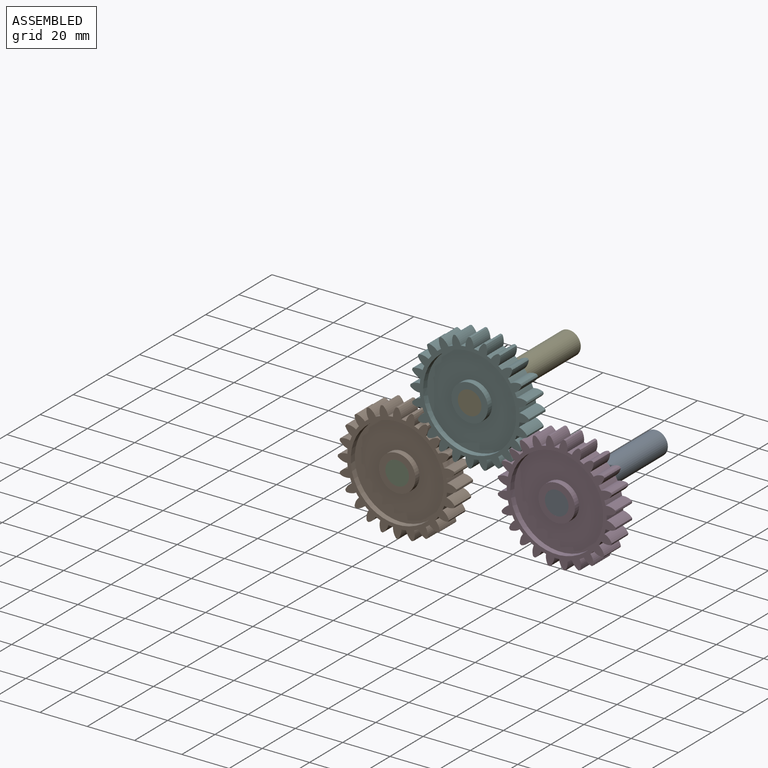
[diagram: assembled view]
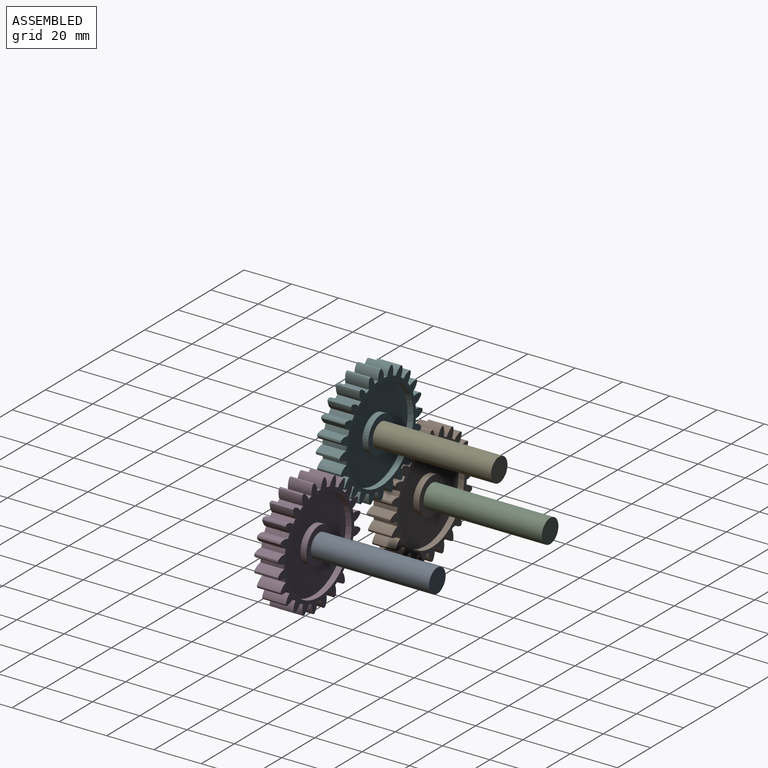
[diagram: assembled view, second angle]
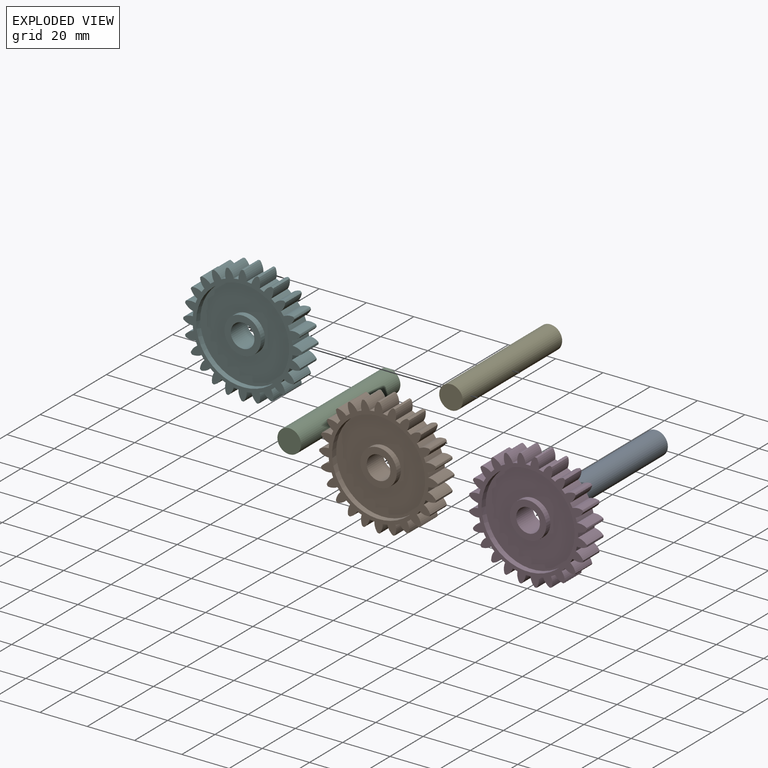
[diagram: exploded view]
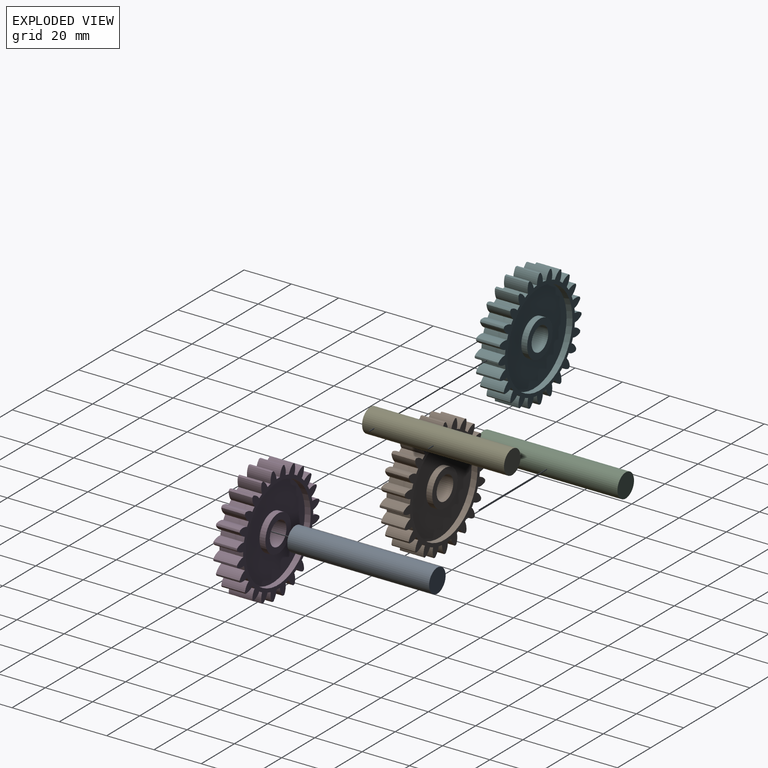
[diagram: exploded view, second angle]
ASSEMBLY  parts=6 mates=3
PART A: 3 faces, bbox 10x60x10 mm
  f0: cylinder r=5mm len=60mm, axis (0,1,0), area 1885mm2, adj f1,f2
  f1: plane 10x10mm, normal (0,-1,0), area 78.5mm2, adj f0
  f2: plane 10x10mm, normal (0,1,0), area 78.5mm2, adj f0
PART B: 155 faces, bbox 50.1x10x50.1 mm
  f0: cylinder r=7.71mm len=15.42mm, axis (0,1,0), area 121.1mm2, adj f4,f154
  f1: cylinder r=5mm len=10mm, axis (0,1,0), area 314.2mm2, adj f3,f4
  f2: cylinder r=7.71mm len=15.42mm, axis (0,1,0), area 121.1mm2, adj f3,f153
  f3: plane 15.42x15.42mm, normal (0,-1,0), area 108.2mm2, adj f1,f2
  f4: plane 15.42x15.42mm, normal (0,1,0), area 108.2mm2, adj f0,f1
  f5: cylinder r=19.66mm len=39.32mm, axis (0,1,0), area 308.9mm2, adj f37,f154
  f6: cylinder r=21.15mm len=10mm, axis (0,1,0), area 20mm2, adj f36,f37,f97,f102
  f7: cylinder r=21.15mm len=10mm, axis (0,1,0), area 20mm2, adj f34,f36,f37,f92
  f8: cylinder r=21.15mm len=10mm, axis (0,1,0), area 20mm2, adj f36,f37,f101,f107
  f9: cylinder r=21.15mm len=10mm, axis (0,1,0), area 20mm2, adj f36,f37,f106,f112
  f10: cylinder r=21.15mm len=10mm, axis (0,1,0), area 20mm2, adj f36,f37,f111,f117
  f11: cylinder r=21.15mm len=10mm, axis (0,1,0), area 20mm2, adj f36,f37,f116,f122
  f12: cylinder r=21.15mm len=10mm, axis (0,1,0), area 20mm2, adj f36,f37,f121,f127
  f13: cylinder r=21.15mm len=10mm, axis (0,1,0), area 20mm2, adj f36,f37,f126,f132
  f14: cylinder r=21.15mm len=10mm, axis (0,1,0), area 20mm2, adj f36,f37,f131,f137
  f15: cylinder r=21.15mm len=10mm, axis (0,1,0), area 20mm2, adj f36,f37,f136,f142
  f16: cylinder r=21.15mm len=10mm, axis (0,1,0), area 20mm2, adj f36,f37,f141,f147
  f17: cylinder r=21.15mm len=10mm, axis (0,1,0), area 20mm2, adj f36,f37,f146,f152
  f18: cylinder r=21.15mm len=10mm, axis (0,1,0), area 20mm2, adj f36,f37,f42,f148
  f19: cylinder r=21.15mm len=10mm, axis (0,1,0), area 20mm2, adj f36,f37,f41,f47
  f20: cylinder r=21.15mm len=10mm, axis (0,1,0), area 20mm2, adj f36,f37,f46,f52
  f21: cylinder r=21.15mm len=10mm, axis (0,1,0), area 20mm2, adj f36,f37,f51,f57
  f22: cylinder r=21.15mm len=10mm, axis (0,1,0), area 20mm2, adj f36,f37,f56,f62
  f23: cylinder r=21.15mm len=10mm, axis (0,1,0), area 20mm2, adj f36,f37,f61,f67
  f24: cylinder r=21.15mm len=10mm, axis (0,1,0), area 20mm2, adj f36,f37,f66,f72
  f25: cylinder r=21.15mm len=10mm, axis (0,1,0), area 20mm2, adj f36,f37,f71,f77
  f26: cylinder r=21.15mm len=10mm, axis (0,1,0), area 20mm2, adj f36,f37,f76,f82
  f27: cylinder r=21.15mm len=10mm, axis (0,1,0), area 20mm2, adj f36,f37,f81,f87
  f28: cylinder r=21.15mm len=10mm, axis (0,1,0), area 20mm2, adj f36,f37,f86,f91
  f29: cylinder r=21.15mm len=10mm, axis (0,1,0), area 20mm2, adj f30,f36,f37,f96
  f30: cylinder r=6.02mm len=10mm, axis (0,1,0), area 20mm2, adj f29,f31,f36,f37
  f31: cylinder r=5.96mm len=10mm, axis (0,1,0), area 22.9mm2, adj f30,f32,f36,f37
  f32: cylinder r=2.37mm len=10mm, axis (0,1,0), area 8.9mm2, adj f31,f33,f36,f37
  f33: cylinder r=5.96mm len=10mm, axis (0,1,0), area 22.9mm2, adj f32,f34,f36,f37
  f34: cylinder r=6.02mm len=10mm, axis (0,1,0), area 20mm2, adj f7,f33,f36,f37
  f35: cylinder r=19.66mm len=39.32mm, axis (0,1,0), area 308.9mm2, adj f36,f153
  f36: plane 50.11x50.11mm, normal (0,-1,0), area 450.1mm2, adj f6,f7,f8,f9,f10,f11,f12,f13
  f37: plane 50.11x50.11mm, normal (0,1,0), area 450.1mm2, adj f5,f6,f7,f8,f9,f10,f11,f12
  f38: cylinder r=5.96mm len=10mm, axis (0,1,0), area 22.9mm2, adj f36,f37,f39,f41
  f39: cylinder r=2.37mm len=10mm, axis (0,1,0), area 8.9mm2, adj f36,f37,f38,f40
  f40: cylinder r=5.96mm len=10mm, axis (0,1,0), area 22.9mm2, adj f36,f37,f39,f42
  f41: cylinder r=6.02mm len=10mm, axis (0,1,0), area 20mm2, adj f19,f36,f37,f38
  f42: cylinder r=6.02mm len=10mm, axis (0,1,0), area 20mm2, adj f18,f36,f37,f40
  f43: cylinder r=5.96mm len=10mm, axis (0,1,0), area 22.9mm2, adj f36,f37,f44,f46
  f44: cylinder r=2.37mm len=10mm, axis (0,1,0), area 8.9mm2, adj f36,f37,f43,f45
  f45: cylinder r=5.96mm len=10mm, axis (0,1,0), area 22.9mm2, adj f36,f37,f44,f47
  f46: cylinder r=6.02mm len=10mm, axis (0,1,0), area 20mm2, adj f20,f36,f37,f43
  f47: cylinder r=6.02mm len=10mm, axis (0,1,0), area 20mm2, adj f19,f36,f37,f45
  f48: cylinder r=5.96mm len=10mm, axis (0,1,0), area 22.9mm2, adj f36,f37,f49,f51
  f49: cylinder r=2.37mm len=10mm, axis (0,1,0), area 8.9mm2, adj f36,f37,f48,f50
  f50: cylinder r=5.96mm len=10mm, axis (0,1,0), area 22.9mm2, adj f36,f37,f49,f52
  f51: cylinder r=6.02mm len=10mm, axis (0,1,0), area 20mm2, adj f21,f36,f37,f48
  f52: cylinder r=6.02mm len=10mm, axis (0,1,0), area 20mm2, adj f20,f36,f37,f50
  f53: cylinder r=5.96mm len=10mm, axis (0,1,0), area 22.9mm2, adj f36,f37,f54,f56
  f54: cylinder r=2.37mm len=10mm, axis (0,1,0), area 8.9mm2, adj f36,f37,f53,f55
  f55: cylinder r=5.96mm len=10mm, axis (0,1,0), area 22.9mm2, adj f36,f37,f54,f57
  f56: cylinder r=6.02mm len=10mm, axis (0,1,0), area 20mm2, adj f22,f36,f37,f53
  f57: cylinder r=6.02mm len=10mm, axis (0,1,0), area 20mm2, adj f21,f36,f37,f55
  f58: cylinder r=5.96mm len=10mm, axis (0,1,0), area 22.9mm2, adj f36,f37,f59,f61
  f59: cylinder r=2.37mm len=10mm, axis (0,1,0), area 8.9mm2, adj f36,f37,f58,f60
  f60: cylinder r=5.96mm len=10mm, axis (0,1,0), area 22.9mm2, adj f36,f37,f59,f62
  f61: cylinder r=6.02mm len=10mm, axis (0,1,0), area 20mm2, adj f23,f36,f37,f58
  f62: cylinder r=6.02mm len=10mm, axis (0,1,0), area 20mm2, adj f22,f36,f37,f60
  f63: cylinder r=5.96mm len=10mm, axis (0,1,0), area 22.9mm2, adj f36,f37,f64,f66
  f64: cylinder r=2.37mm len=10mm, axis (0,1,0), area 8.9mm2, adj f36,f37,f63,f65
  f65: cylinder r=5.96mm len=10mm, axis (0,1,0), area 22.9mm2, adj f36,f37,f64,f67
  f66: cylinder r=6.02mm len=10mm, axis (0,1,0), area 20mm2, adj f24,f36,f37,f63
  f67: cylinder r=6.02mm len=10mm, axis (0,1,0), area 20mm2, adj f23,f36,f37,f65
  f68: cylinder r=5.96mm len=10mm, axis (0,1,0), area 22.9mm2, adj f36,f37,f69,f71
  f69: cylinder r=2.37mm len=10mm, axis (0,1,0), area 8.9mm2, adj f36,f37,f68,f70
  f70: cylinder r=5.96mm len=10mm, axis (0,1,0), area 22.9mm2, adj f36,f37,f69,f72
  f71: cylinder r=6.02mm len=10mm, axis (0,1,0), area 20mm2, adj f25,f36,f37,f68
  f72: cylinder r=6.02mm len=10mm, axis (0,1,0), area 20mm2, adj f24,f36,f37,f70
  f73: cylinder r=5.96mm len=10mm, axis (0,1,0), area 22.9mm2, adj f36,f37,f74,f76
  f74: cylinder r=2.37mm len=10mm, axis (0,1,0), area 8.9mm2, adj f36,f37,f73,f75
  f75: cylinder r=5.96mm len=10mm, axis (0,1,0), area 22.9mm2, adj f36,f37,f74,f77
  f76: cylinder r=6.02mm len=10mm, axis (0,1,0), area 20mm2, adj f26,f36,f37,f73
  f77: cylinder r=6.02mm len=10mm, axis (0,1,0), area 20mm2, adj f25,f36,f37,f75
  f78: cylinder r=5.96mm len=10mm, axis (0,1,0), area 22.9mm2, adj f36,f37,f79,f81
  f79: cylinder r=2.37mm len=10mm, axis (0,1,0), area 8.9mm2, adj f36,f37,f78,f80
  f80: cylinder r=5.96mm len=10mm, axis (0,1,0), area 22.9mm2, adj f36,f37,f79,f82
  f81: cylinder r=6.02mm len=10mm, axis (0,1,0), area 20mm2, adj f27,f36,f37,f78
  f82: cylinder r=6.02mm len=10mm, axis (0,1,0), area 20mm2, adj f26,f36,f37,f80
  f83: cylinder r=5.96mm len=10mm, axis (0,1,0), area 22.9mm2, adj f36,f37,f84,f86
  f84: cylinder r=2.37mm len=10mm, axis (0,1,0), area 8.9mm2, adj f36,f37,f83,f85
  f85: cylinder r=5.96mm len=10mm, axis (0,1,0), area 22.9mm2, adj f36,f37,f84,f87
  f86: cylinder r=6.02mm len=10mm, axis (0,1,0), area 20mm2, adj f28,f36,f37,f83
  f87: cylinder r=6.02mm len=10mm, axis (0,1,0), area 20mm2, adj f27,f36,f37,f85
  f88: cylinder r=5.96mm len=10mm, axis (0,1,0), area 22.9mm2, adj f36,f37,f89,f92
  f89: cylinder r=2.37mm len=10mm, axis (0,1,0), area 8.9mm2, adj f36,f37,f88,f90
  f90: cylinder r=5.96mm len=10mm, axis (0,1,0), area 22.9mm2, adj f36,f37,f89,f91
  f91: cylinder r=6.02mm len=10mm, axis (0,1,0), area 20mm2, adj f28,f36,f37,f90
  f92: cylinder r=6.02mm len=10mm, axis (0,1,0), area 20mm2, adj f7,f36,f37,f88
  f93: cylinder r=5.96mm len=10mm, axis (0,1,0), area 22.9mm2, adj f36,f37,f94,f97
  f94: cylinder r=2.37mm len=10mm, axis (0,1,0), area 8.9mm2, adj f36,f37,f93,f95
  f95: cylinder r=5.96mm len=10mm, axis (0,1,0), area 22.9mm2, adj f36,f37,f94,f96
  f96: cylinder r=6.02mm len=10mm, axis (0,1,0), area 20mm2, adj f29,f36,f37,f95
  f97: cylinder r=6.02mm len=10mm, axis (0,1,0), area 20mm2, adj f6,f36,f37,f93
  f98: cylinder r=5.96mm len=10mm, axis (0,1,0), area 22.9mm2, adj f36,f37,f99,f101
  f99: cylinder r=2.37mm len=10mm, axis (0,1,0), area 8.9mm2, adj f36,f37,f98,f100
  f100: cylinder r=5.96mm len=10mm, axis (0,1,0), area 22.9mm2, adj f36,f37,f99,f102
  f101: cylinder r=6.02mm len=10mm, axis (0,1,0), area 20mm2, adj f8,f36,f37,f98
  f102: cylinder r=6.02mm len=10mm, axis (0,1,0), area 20mm2, adj f6,f36,f37,f100
  f103: cylinder r=5.96mm len=10mm, axis (0,1,0), area 22.9mm2, adj f36,f37,f104,f106
  f104: cylinder r=2.37mm len=10mm, axis (0,1,0), area 8.9mm2, adj f36,f37,f103,f105
  f105: cylinder r=5.96mm len=10mm, axis (0,1,0), area 22.9mm2, adj f36,f37,f104,f107
  f106: cylinder r=6.02mm len=10mm, axis (0,1,0), area 20mm2, adj f9,f36,f37,f103
  f107: cylinder r=6.02mm len=10mm, axis (0,1,0), area 20mm2, adj f8,f36,f37,f105
  f108: cylinder r=5.96mm len=10mm, axis (0,1,0), area 22.9mm2, adj f36,f37,f109,f111
  f109: cylinder r=2.37mm len=10mm, axis (0,1,0), area 8.9mm2, adj f36,f37,f108,f110
  f110: cylinder r=5.96mm len=10mm, axis (0,1,0), area 22.9mm2, adj f36,f37,f109,f112
  f111: cylinder r=6.02mm len=10mm, axis (0,1,0), area 20mm2, adj f10,f36,f37,f108
  f112: cylinder r=6.02mm len=10mm, axis (0,1,0), area 20mm2, adj f9,f36,f37,f110
  f113: cylinder r=5.96mm len=10mm, axis (0,1,0), area 22.9mm2, adj f36,f37,f114,f116
  f114: cylinder r=2.37mm len=10mm, axis (0,1,0), area 8.9mm2, adj f36,f37,f113,f115
  f115: cylinder r=5.96mm len=10mm, axis (0,1,0), area 22.9mm2, adj f36,f37,f114,f117
  f116: cylinder r=6.02mm len=10mm, axis (0,1,0), area 20mm2, adj f11,f36,f37,f113
  f117: cylinder r=6.02mm len=10mm, axis (0,1,0), area 20mm2, adj f10,f36,f37,f115
  f118: cylinder r=5.96mm len=10mm, axis (0,1,0), area 22.9mm2, adj f36,f37,f119,f121
  f119: cylinder r=2.37mm len=10mm, axis (0,1,0), area 8.9mm2, adj f36,f37,f118,f120
  f120: cylinder r=5.96mm len=10mm, axis (0,1,0), area 22.9mm2, adj f36,f37,f119,f122
  f121: cylinder r=6.02mm len=10mm, axis (0,1,0), area 20mm2, adj f12,f36,f37,f118
  f122: cylinder r=6.02mm len=10mm, axis (0,1,0), area 20mm2, adj f11,f36,f37,f120
  f123: cylinder r=5.96mm len=10mm, axis (0,1,0), area 22.9mm2, adj f36,f37,f124,f126
  f124: cylinder r=2.37mm len=10mm, axis (0,1,0), area 8.9mm2, adj f36,f37,f123,f125
  f125: cylinder r=5.96mm len=10mm, axis (0,1,0), area 22.9mm2, adj f36,f37,f124,f127
  f126: cylinder r=6.02mm len=10mm, axis (0,1,0), area 20mm2, adj f13,f36,f37,f123
  f127: cylinder r=6.02mm len=10mm, axis (0,1,0), area 20mm2, adj f12,f36,f37,f125
  f128: cylinder r=5.96mm len=10mm, axis (0,1,0), area 22.9mm2, adj f36,f37,f129,f131
  f129: cylinder r=2.37mm len=10mm, axis (0,1,0), area 8.9mm2, adj f36,f37,f128,f130
  f130: cylinder r=5.96mm len=10mm, axis (0,1,0), area 22.9mm2, adj f36,f37,f129,f132
  f131: cylinder r=6.02mm len=10mm, axis (0,1,0), area 20mm2, adj f14,f36,f37,f128
  f132: cylinder r=6.02mm len=10mm, axis (0,1,0), area 20mm2, adj f13,f36,f37,f130
  f133: cylinder r=5.96mm len=10mm, axis (0,1,0), area 22.9mm2, adj f36,f37,f134,f136
  f134: cylinder r=2.37mm len=10mm, axis (0,1,0), area 8.9mm2, adj f36,f37,f133,f135
  f135: cylinder r=5.96mm len=10mm, axis (0,1,0), area 22.9mm2, adj f36,f37,f134,f137
  f136: cylinder r=6.02mm len=10mm, axis (0,1,0), area 20mm2, adj f15,f36,f37,f133
  f137: cylinder r=6.02mm len=10mm, axis (0,1,0), area 20mm2, adj f14,f36,f37,f135
  f138: cylinder r=5.96mm len=10mm, axis (0,1,0), area 22.9mm2, adj f36,f37,f139,f141
  f139: cylinder r=2.37mm len=10mm, axis (0,1,0), area 8.9mm2, adj f36,f37,f138,f140
  f140: cylinder r=5.96mm len=10mm, axis (0,1,0), area 22.9mm2, adj f36,f37,f139,f142
  f141: cylinder r=6.02mm len=10mm, axis (0,1,0), area 20mm2, adj f16,f36,f37,f138
  f142: cylinder r=6.02mm len=10mm, axis (0,1,0), area 20mm2, adj f15,f36,f37,f140
  f143: cylinder r=5.96mm len=10mm, axis (0,1,0), area 22.9mm2, adj f36,f37,f144,f146
  f144: cylinder r=2.37mm len=10mm, axis (0,1,0), area 8.9mm2, adj f36,f37,f143,f145
  f145: cylinder r=5.96mm len=10mm, axis (0,1,0), area 22.9mm2, adj f36,f37,f144,f147
  f146: cylinder r=6.02mm len=10mm, axis (0,1,0), area 20mm2, adj f17,f36,f37,f143
  f147: cylinder r=6.02mm len=10mm, axis (0,1,0), area 20mm2, adj f16,f36,f37,f145
  f148: cylinder r=6.02mm len=10mm, axis (0,1,0), area 20mm2, adj f18,f36,f37,f149
  f149: cylinder r=5.96mm len=10mm, axis (0,1,0), area 22.9mm2, adj f36,f37,f148,f150
  f150: cylinder r=2.37mm len=10mm, axis (0,1,0), area 8.9mm2, adj f36,f37,f149,f151
  f151: cylinder r=5.96mm len=10mm, axis (0,1,0), area 22.9mm2, adj f36,f37,f150,f152
  f152: cylinder r=6.02mm len=10mm, axis (0,1,0), area 20mm2, adj f17,f36,f37,f151
  f153: plane 39.32x39.32mm, normal (0,-1,0), area 1027.8mm2, adj f2,f35
  f154: plane 39.32x39.32mm, normal (0,1,0), area 1027.8mm2, adj f0,f5
PART C: same geometry as A
PART D: same geometry as B
PART E: same geometry as A
PART F: same geometry as B
PLACE A t=(-9.65,3.07,-57.9)mm fixed
PLACE B rot(axis=(0.97,0,-0.23),180deg) t=(-77.35,-51.62,-64.72)mm
PLACE C t=(-77.35,3.38,-64.72)mm fixed
PLACE D rot(axis=(0,1,0),26.2deg) t=(-9.65,-51.93,-57.9)mm
PLACE E t=(-46.66,3.32,-29.6)mm fixed
PLACE F rot(axis=(0,1,0),153.8deg) t=(-46.66,-51.68,-29.6)mm
MATE revolute A.f0 <-> D.f0  axis (0,-1,0) through (-9.65,-56.93,-57.9)mm
MATE revolute C.f0 <-> B.f0  axis (0,1,0) through (-77.35,-56.62,-64.72)mm
MATE revolute F.f0 <-> E.f0  axis (0,-1,0) through (-46.66,-56.68,-29.6)mm
